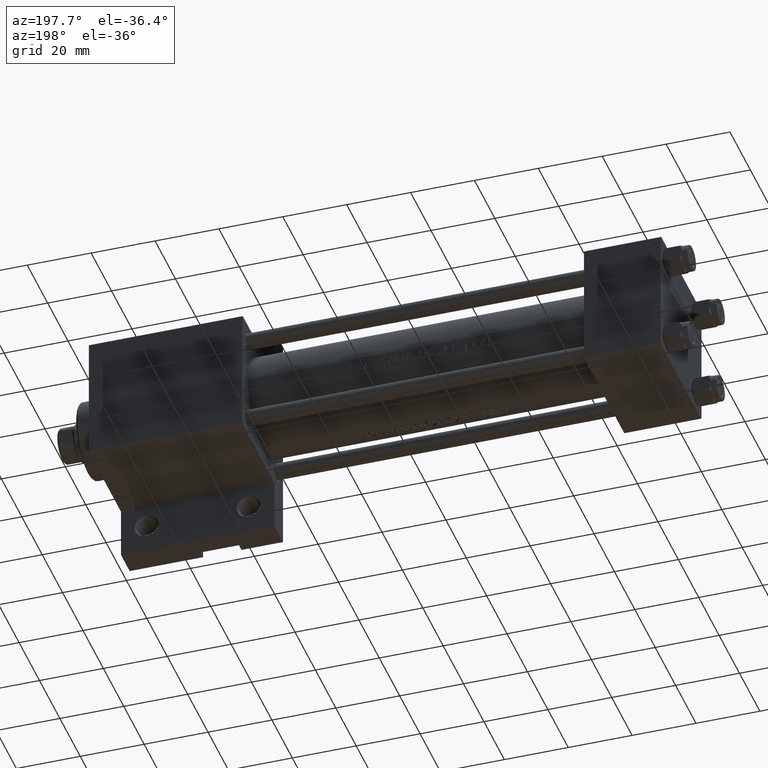
[diagram: clean part render]
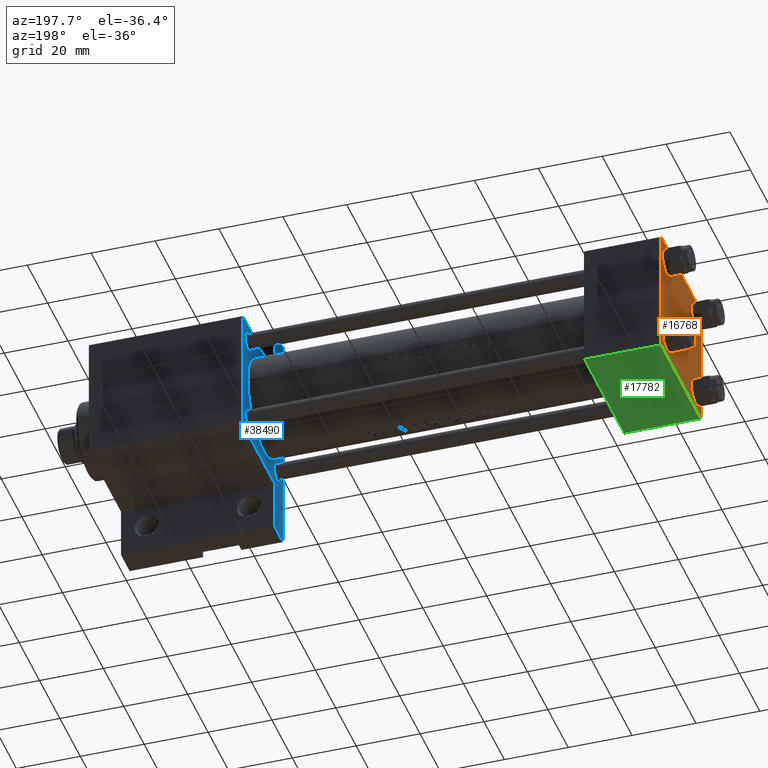
[diagram: same view with three faces highlighted in distinct colors, each labeled with its STEP entity id]
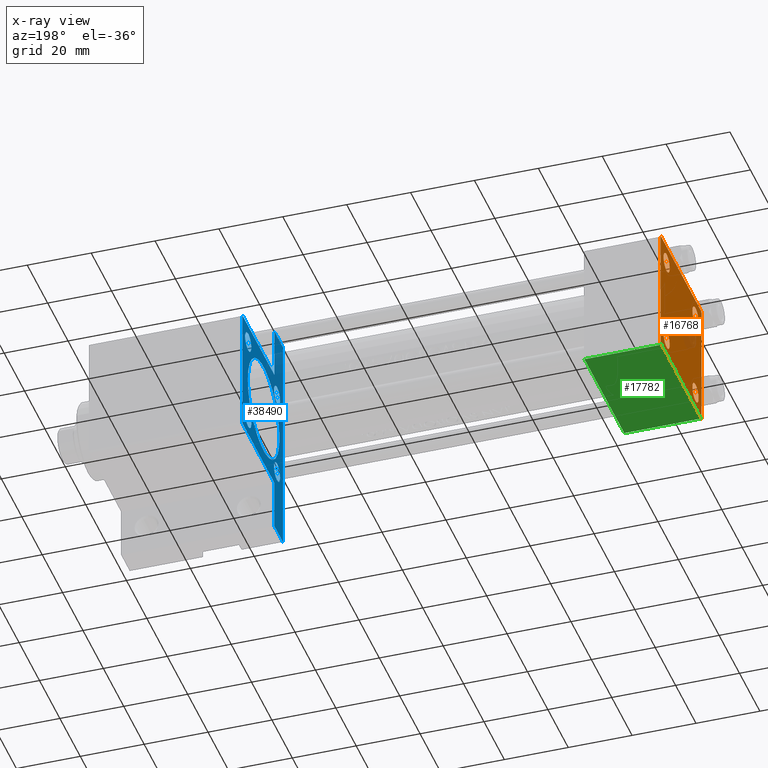
[diagram: x-ray of the same camera — body ghosted, the three highlighted faces saturated]
A machine part, auxiliary view with three faces highlighted in distinct colors.
The next image is the same camera in x-ray (body ghosted, the three faces saturated) — at least one of them is partly hidden behind the body in this view.
Their STEP definitions:

[orange] entity #16768 — the highlighted planar face has unit normal (-1, 0, -0).
#49 = EDGE_CURVE ( 'NONE', #32340, #11450, #11177, .T. ) ;
#93 = ORIENTED_EDGE ( 'NONE', *, *, #241, .T. ) ;
#241 = EDGE_CURVE ( 'NONE', #10335, #38544, #4764, .T. ) ;
#590 = AXIS2_PLACEMENT_3D ( 'NONE', #14220, #44141, #18284 ) ;
#749 = AXIS2_PLACEMENT_3D ( 'NONE', #43699, #24666, #47070 ) ;
#1051 = DIRECTION ( 'NONE',  ( -0.000000000000000000, 0.000000000000000000, 1.000000000000000000 ) ) ;
#1129 = EDGE_CURVE ( 'NONE', #32888, #36355, #41112, .T. ) ;
#1494 = LINE ( 'NONE', #13053, #44858 ) ;
#2131 = CARTESIAN_POINT ( 'NONE',  ( 0.000000000000000000, 14.14999999999999858, -17.14999999999998437 ) ) ;
#2174 = CARTESIAN_POINT ( 'NONE',  ( 0.000000000000000000, 14.14999999999999858, -11.15000000000001812 ) ) ;
#2926 = DIRECTION ( 'NONE',  ( 0.000000000000000000, 0.000000000000000000, 1.000000000000000000 ) ) ;
#3189 = CARTESIAN_POINT ( 'NONE',  ( 0.000000000000000000, -19.75000000000020961, -19.74999999999979394 ) ) ;
#3512 = DIRECTION ( 'NONE',  ( 1.000000000000000000, 0.000000000000000000, 0.000000000000000000 ) ) ;
#3999 = CARTESIAN_POINT ( 'NONE',  ( 0.000000000000000000, -20.00000000000000000, -19.49999999999999645 ) ) ;
#4764 = CIRCLE ( 'NONE', #10928, 2.999999999999983569 ) ;
#4782 = CARTESIAN_POINT ( 'NONE',  ( 0.000000000000000000, 14.14999999999999858, -14.15000000000000036 ) ) ;
#4904 = CARTESIAN_POINT ( 'NONE',  ( 0.000000000000000000, 0.000000000000000000, 0.000000000000000000 ) ) ;
#4999 = EDGE_CURVE ( 'NONE', #36355, #10648, #36206, .T. ) ;
#5438 = CARTESIAN_POINT ( 'NONE',  ( 0.000000000000000000, -19.50000000000000711, -20.00000000000000000 ) ) ;
#5519 = DIRECTION ( 'NONE',  ( 1.000000000000000000, 0.000000000000000000, 0.000000000000000000 ) ) ;
#5760 = DIRECTION ( 'NONE',  ( 0.000000000000000000, 0.000000000000000000, 1.000000000000000000 ) ) ;
#6358 = VECTOR ( 'NONE', #18628, 1000.000000000000000 ) ;
#7367 = CARTESIAN_POINT ( 'NONE',  ( 0.000000000000000000, -14.14999999999999503, 14.15000000000000391 ) ) ;
#8210 = ORIENTED_EDGE ( 'NONE', *, *, #43110, .F. ) ;
#8341 = DIRECTION ( 'NONE',  ( 0.000000000000000000, -1.000000000000000000, 1.734723475976807094E-16 ) ) ;
#8457 = CARTESIAN_POINT ( 'NONE',  ( -0.000000000000000000, 19.74999999999986855, -19.75000000000014211 ) ) ;
#8519 = FACE_BOUND ( 'NONE', #32047, .T. ) ;
#8645 = ORIENTED_EDGE ( 'NONE', *, *, #21315, .T. ) ;
#8872 = ORIENTED_EDGE ( 'NONE', *, *, #35487, .T. ) ;
#9007 = CARTESIAN_POINT ( 'NONE',  ( 0.000000000000000000, 20.00000000000000000, 20.00000000000000000 ) ) ;
#9143 = EDGE_CURVE ( 'NONE', #36146, #44484, #28458, .T. ) ;
#9580 = CARTESIAN_POINT ( 'NONE',  ( 0.000000000000000000, 14.14999999999999858, -14.15000000000000036 ) ) ;
#10335 = VERTEX_POINT ( 'NONE', #25783 ) ;
#10520 = DIRECTION ( 'NONE',  ( 0.000000000000000000, 0.000000000000000000, 1.000000000000000000 ) ) ;
#10613 = CIRCLE ( 'NONE', #19931, 2.999999999999983569 ) ;
#10648 = VERTEX_POINT ( 'NONE', #3999 ) ;
#10715 = ORIENTED_EDGE ( 'NONE', *, *, #35152, .T. ) ;
#10875 = CARTESIAN_POINT ( 'NONE',  ( 0.000000000000000000, -14.14999999999999503, -14.15000000000000391 ) ) ;
#10928 = AXIS2_PLACEMENT_3D ( 'NONE', #16209, #46092, #45855 ) ;
#11177 = LINE ( 'NONE', #36955, #6358 ) ;
#11450 = VERTEX_POINT ( 'NONE', #42267 ) ;
#11802 = VERTEX_POINT ( 'NONE', #38235 ) ;
#11890 = VERTEX_POINT ( 'NONE', #13402 ) ;
#12375 = FACE_BOUND ( 'NONE', #38825, .T. ) ;
#12923 = CIRCLE ( 'NONE', #590, 2.999999999999983569 ) ;
#13053 = CARTESIAN_POINT ( 'NONE',  ( -0.000000000000000000, 19.75000000000013500, 19.74999999999986144 ) ) ;
#13402 = CARTESIAN_POINT ( 'NONE',  ( 0.000000000000000000, -14.14999999999999503, -11.15000000000000036 ) ) ;
#13423 = EDGE_CURVE ( 'NONE', #11450, #32888, #33507, .T. ) ;
#13594 = DIRECTION ( 'NONE',  ( 0.000000000000000000, 0.000000000000000000, 1.000000000000000000 ) ) ;
#13780 = DIRECTION ( 'NONE',  ( 1.000000000000000000, 0.000000000000000000, 0.000000000000000000 ) ) ;
#14071 = CARTESIAN_POINT ( 'NONE',  ( 0.000000000000000000, 14.14999999999999858, 14.15000000000000036 ) ) ;
#14220 = CARTESIAN_POINT ( 'NONE',  ( 0.000000000000000000, 14.14999999999999858, 14.15000000000000036 ) ) ;
#15394 = CARTESIAN_POINT ( 'NONE',  ( 0.000000000000000000, -19.49999999999999289, 19.99999999999998934 ) ) ;
#15669 = DIRECTION ( 'NONE',  ( -0.000000000000000000, -0.7071067811865524577, -0.7071067811865426878 ) ) ;
#15927 = DIRECTION ( 'NONE',  ( 0.000000000000000000, 0.7071067811865425767, -0.7071067811865525687 ) ) ;
#16209 = CARTESIAN_POINT ( 'NONE',  ( 0.000000000000000000, -14.14999999999999503, 14.15000000000000391 ) ) ;
#16768 = ADVANCED_FACE ( 'NONE', ( #12375, #23193, #37910, #8519, #22715 ), #37667, .T. ) ;
#16884 = EDGE_CURVE ( 'NONE', #11802, #44484, #46562, .T. ) ;
#17394 = ORIENTED_EDGE ( 'NONE', *, *, #16884, .F. ) ;
#17472 = VECTOR ( 'NONE', #38396, 1000.000000000000000 ) ;
#17781 = CARTESIAN_POINT ( 'NONE',  ( 0.000000000000000000, -20.00000000000000355, 19.49999999999998224 ) ) ;
#17959 = CARTESIAN_POINT ( 'NONE',  ( 0.000000000000000000, 19.50000000000000711, -20.00000000000000711 ) ) ;
#18284 = DIRECTION ( 'NONE',  ( 0.000000000000000000, 0.000000000000000000, 1.000000000000000000 ) ) ;
#18291 = LINE ( 'NONE', #33942, #30939 ) ;
#18309 = EDGE_CURVE ( 'NONE', #43276, #45166, #12923, .T. ) ;
#18628 = DIRECTION ( 'NONE',  ( 0.000000000000000000, 0.000000000000000000, -1.000000000000000000 ) ) ;
#19931 = AXIS2_PLACEMENT_3D ( 'NONE', #4782, #5519, #5760 ) ;
#20318 = VECTOR ( 'NONE', #36181, 1000.000000000000114 ) ;
#20699 = CIRCLE ( 'NONE', #47613, 2.999999999999983569 ) ;
#20737 = AXIS2_PLACEMENT_3D ( 'NONE', #9580, #35822, #38960 ) ;
#20959 = VECTOR ( 'NONE', #8341, 1000.000000000000000 ) ;
#21048 = DIRECTION ( 'NONE',  ( 1.000000000000000000, 0.000000000000000000, 0.000000000000000000 ) ) ;
#21215 = VERTEX_POINT ( 'NONE', #39756 ) ;
#21315 = EDGE_CURVE ( 'NONE', #28650, #21516, #10613, .T. ) ;
#21516 = VERTEX_POINT ( 'NONE', #2131 ) ;
#22441 = ORIENTED_EDGE ( 'NONE', *, *, #1129, .T. ) ;
#22715 = FACE_OUTER_BOUND ( 'NONE', #25140, .T. ) ;
#23193 = FACE_BOUND ( 'NONE', #36985, .T. ) ;
#24292 = VECTOR ( 'NONE', #15669, 1000.000000000000000 ) ;
#24470 = ORIENTED_EDGE ( 'NONE', *, *, #49, .T. ) ;
#24666 = DIRECTION ( 'NONE',  ( 1.000000000000000000, 0.000000000000000000, 0.000000000000000000 ) ) ;
#25140 = EDGE_LOOP ( 'NONE', ( #24470, #26657, #22441, #26734, #8210, #34393, #17394, #28976 ) ) ;
#25783 = CARTESIAN_POINT ( 'NONE',  ( 0.000000000000000000, -14.14999999999999503, 17.14999999999998792 ) ) ;
#26657 = ORIENTED_EDGE ( 'NONE', *, *, #13423, .T. ) ;
#26734 = ORIENTED_EDGE ( 'NONE', *, *, #4999, .T. ) ;
#28458 = LINE ( 'NONE', #43874, #20318 ) ;
#28650 = VERTEX_POINT ( 'NONE', #2174 ) ;
#28740 = CIRCLE ( 'NONE', #37202, 2.999999999999983569 ) ;
#28976 = ORIENTED_EDGE ( 'NONE', *, *, #44217, .T. ) ;
#29707 = DIRECTION ( 'NONE',  ( -1.000000000000000000, 0.000000000000000000, -0.000000000000000000 ) ) ;
#30939 = VECTOR ( 'NONE', #44079, 1000.000000000000000 ) ;
#32047 = EDGE_LOOP ( 'NONE', ( #43658, #32065 ) ) ;
#32065 = ORIENTED_EDGE ( 'NONE', *, *, #18309, .T. ) ;
#32340 = VERTEX_POINT ( 'NONE', #44621 ) ;
#32738 = EDGE_CURVE ( 'NONE', #21516, #28650, #41513, .T. ) ;
#32888 = VERTEX_POINT ( 'NONE', #17959 ) ;
#33071 = CIRCLE ( 'NONE', #33862, 3.000000000000004441 ) ;
#33507 = LINE ( 'NONE', #8457, #24292 ) ;
#33862 = AXIS2_PLACEMENT_3D ( 'NONE', #10875, #13780, #2926 ) ;
#33942 = CARTESIAN_POINT ( 'NONE',  ( 0.000000000000000000, -20.00000000000000355, 19.99999999999998934 ) ) ;
#34393 = ORIENTED_EDGE ( 'NONE', *, *, #9143, .T. ) ;
#35152 = EDGE_CURVE ( 'NONE', #38544, #10335, #20699, .T. ) ;
#35487 = EDGE_CURVE ( 'NONE', #21215, #11890, #38463, .T. ) ;
#35822 = DIRECTION ( 'NONE',  ( 1.000000000000000000, 0.000000000000000000, 0.000000000000000000 ) ) ;
#36146 = VERTEX_POINT ( 'NONE', #17781 ) ;
#36181 = DIRECTION ( 'NONE',  ( -0.000000000000000000, 0.7071067811865500152, 0.7071067811865451302 ) ) ;
#36206 = LINE ( 'NONE', #3189, #43396 ) ;
#36355 = VERTEX_POINT ( 'NONE', #5438 ) ;
#36802 = EDGE_CURVE ( 'NONE', #11890, #21215, #33071, .T. ) ;
#36955 = CARTESIAN_POINT ( 'NONE',  ( 0.000000000000000000, 20.00000000000000000, 20.00000000000000000 ) ) ;
#36985 = EDGE_LOOP ( 'NONE', ( #45611, #8872 ) ) ;
#37202 = AXIS2_PLACEMENT_3D ( 'NONE', #14071, #21048, #13594 ) ;
#37667 = PLANE ( 'NONE',  #47498 ) ;
#37910 = FACE_BOUND ( 'NONE', #45068, .T. ) ;
#38235 = CARTESIAN_POINT ( 'NONE',  ( 0.000000000000000000, 19.50000000000000000, 20.00000000000000000 ) ) ;
#38336 = DIRECTION ( 'NONE',  ( 0.000000000000000000, -0.7071067811865401342, 0.7071067811865549002 ) ) ;
#38396 = DIRECTION ( 'NONE',  ( 0.000000000000000000, -1.000000000000000000, -2.602085213965210149E-16 ) ) ;
#38463 = CIRCLE ( 'NONE', #749, 3.000000000000004441 ) ;
#38544 = VERTEX_POINT ( 'NONE', #46857 ) ;
#38825 = EDGE_LOOP ( 'NONE', ( #93, #10715 ) ) ;
#38960 = DIRECTION ( 'NONE',  ( 0.000000000000000000, 0.000000000000000000, 1.000000000000000000 ) ) ;
#39756 = CARTESIAN_POINT ( 'NONE',  ( 0.000000000000000000, -14.14999999999999503, -17.15000000000000924 ) ) ;
#41112 = LINE ( 'NONE', #44957, #20959 ) ;
#41513 = CIRCLE ( 'NONE', #20737, 2.999999999999983569 ) ;
#42267 = CARTESIAN_POINT ( 'NONE',  ( 0.000000000000000000, 20.00000000000000000, -19.50000000000002132 ) ) ;
#43110 = EDGE_CURVE ( 'NONE', #36146, #10648, #18291, .T. ) ;
#43276 = VERTEX_POINT ( 'NONE', #45986 ) ;
#43396 = VECTOR ( 'NONE', #38336, 1000.000000000000000 ) ;
#43658 = ORIENTED_EDGE ( 'NONE', *, *, #46089, .T. ) ;
#43699 = CARTESIAN_POINT ( 'NONE',  ( 0.000000000000000000, -14.14999999999999503, -14.15000000000000391 ) ) ;
#43874 = CARTESIAN_POINT ( 'NONE',  ( -0.000000000000000000, -19.74999999999992539, 19.75000000000006395 ) ) ;
#44079 = DIRECTION ( 'NONE',  ( 0.000000000000000000, 8.673617379884036705E-17, -1.000000000000000000 ) ) ;
#44141 = DIRECTION ( 'NONE',  ( 1.000000000000000000, 0.000000000000000000, 0.000000000000000000 ) ) ;
#44170 = ORIENTED_EDGE ( 'NONE', *, *, #32738, .T. ) ;
#44217 = EDGE_CURVE ( 'NONE', #11802, #32340, #1494, .T. ) ;
#44484 = VERTEX_POINT ( 'NONE', #15394 ) ;
#44621 = CARTESIAN_POINT ( 'NONE',  ( 0.000000000000000000, 20.00000000000000000, 19.49999999999999289 ) ) ;
#44858 = VECTOR ( 'NONE', #15927, 999.9999999999998863 ) ;
#44957 = CARTESIAN_POINT ( 'NONE',  ( 0.000000000000000000, 20.00000000000000000, -20.00000000000000711 ) ) ;
#45068 = EDGE_LOOP ( 'NONE', ( #8645, #44170 ) ) ;
#45166 = VERTEX_POINT ( 'NONE', #45883 ) ;
#45611 = ORIENTED_EDGE ( 'NONE', *, *, #36802, .T. ) ;
#45855 = DIRECTION ( 'NONE',  ( 0.000000000000000000, 0.000000000000000000, 1.000000000000000000 ) ) ;
#45883 = CARTESIAN_POINT ( 'NONE',  ( 0.000000000000000000, 14.14999999999999858, 17.14999999999998437 ) ) ;
#45986 = CARTESIAN_POINT ( 'NONE',  ( 0.000000000000000000, 14.14999999999999858, 11.15000000000001990 ) ) ;
#46089 = EDGE_CURVE ( 'NONE', #45166, #43276, #28740, .T. ) ;
#46092 = DIRECTION ( 'NONE',  ( 1.000000000000000000, 0.000000000000000000, 0.000000000000000000 ) ) ;
#46562 = LINE ( 'NONE', #9007, #17472 ) ;
#46857 = CARTESIAN_POINT ( 'NONE',  ( 0.000000000000000000, -14.14999999999999503, 11.15000000000002345 ) ) ;
#47070 = DIRECTION ( 'NONE',  ( 0.000000000000000000, 0.000000000000000000, 1.000000000000000000 ) ) ;
#47498 = AXIS2_PLACEMENT_3D ( 'NONE', #4904, #29707, #1051 ) ;
#47613 = AXIS2_PLACEMENT_3D ( 'NONE', #7367, #3512, #10520 ) ;

[blue] entity #38490 — the highlighted planar face has unit normal (-1, 0, -0).
#56 = LINE ( 'NONE', #47046, #44071 ) ;
#126 = EDGE_CURVE ( 'NONE', #39017, #41390, #9396, .T. ) ;
#293 = AXIS2_PLACEMENT_3D ( 'NONE', #40169, #7800, #37195 ) ;
#1105 = VERTEX_POINT ( 'NONE', #11243 ) ;
#1396 = EDGE_CURVE ( 'NONE', #41390, #39017, #9432, .T. ) ;
#1594 = CARTESIAN_POINT ( 'NONE',  ( 131.0000000000000000, -14.15000000000000036, -14.15000000000000036 ) ) ;
#2032 = ORIENTED_EDGE ( 'NONE', *, *, #4690, .T. ) ;
#2046 = DIRECTION ( 'NONE',  ( 0.000000000000000000, 8.673617379884036705E-17, -1.000000000000000000 ) ) ;
#2343 = LINE ( 'NONE', #17016, #47548 ) ;
#2712 = EDGE_CURVE ( 'NONE', #36169, #33698, #56, .T. ) ;
#3013 = FACE_BOUND ( 'NONE', #10231, .T. ) ;
#3299 = ORIENTED_EDGE ( 'NONE', *, *, #45661, .T. ) ;
#3481 = DIRECTION ( 'NONE',  ( -0.000000000000000000, 0.000000000000000000, 1.000000000000000000 ) ) ;
#4561 = CARTESIAN_POINT ( 'NONE',  ( 131.0000000000000000, 0.000000000000000000, -1.000000000000007772 ) ) ;
#4690 = EDGE_CURVE ( 'NONE', #29711, #16717, #26434, .T. ) ;
#5094 = EDGE_LOOP ( 'NONE', ( #33853, #30003, #24074, #5553, #47309, #3299, #24498, #14543, #17021, #42631 ) ) ;
#5205 = DIRECTION ( 'NONE',  ( 0.000000000000000000, 0.000000000000000000, 1.000000000000000000 ) ) ;
#5223 = CARTESIAN_POINT ( 'NONE',  ( 131.0000000000000000, -14.15000000000000036, 11.14999999999999503 ) ) ;
#5553 = ORIENTED_EDGE ( 'NONE', *, *, #9601, .T. ) ;
#5593 = DIRECTION ( 'NONE',  ( 1.000000000000000000, 0.000000000000000000, 0.000000000000000000 ) ) ;
#5690 = VERTEX_POINT ( 'NONE', #5223 ) ;
#6441 = DIRECTION ( 'NONE',  ( 0.000000000000000000, 0.000000000000000000, -1.000000000000000000 ) ) ;
#6450 = EDGE_CURVE ( 'NONE', #33698, #9757, #41446, .T. ) ;
#6833 = EDGE_CURVE ( 'NONE', #5690, #16075, #36513, .T. ) ;
#6874 = FACE_BOUND ( 'NONE', #19948, .T. ) ;
#7179 = LINE ( 'NONE', #7878, #25488 ) ;
#7248 = DIRECTION ( 'NONE',  ( 0.000000000000000000, 0.000000000000000000, -1.000000000000000000 ) ) ;
#7270 = DIRECTION ( 'NONE',  ( 0.000000000000000000, 0.000000000000000000, -1.000000000000000000 ) ) ;
#7516 = DIRECTION ( 'NONE',  ( 1.000000000000000000, 0.000000000000000000, 0.000000000000000000 ) ) ;
#7665 = EDGE_LOOP ( 'NONE', ( #42523, #42427 ) ) ;
#7800 = DIRECTION ( 'NONE',  ( 1.000000000000000000, 0.000000000000000000, 0.000000000000000000 ) ) ;
#7878 = CARTESIAN_POINT ( 'NONE',  ( 131.0000000000000000, -36.00000000000000000, -11.50000000000000000 ) ) ;
#8220 = LINE ( 'NONE', #37616, #12790 ) ;
#8827 = DIRECTION ( 'NONE',  ( 1.000000000000000000, 0.000000000000000000, 0.000000000000000000 ) ) ;
#8967 = CARTESIAN_POINT ( 'NONE',  ( 131.0000000000000000, 14.15000000000000036, -14.15000000000000036 ) ) ;
#9396 = CIRCLE ( 'NONE', #24770, 3.000000000000004441 ) ;
#9430 = VECTOR ( 'NONE', #44506, 1000.000000000000000 ) ;
#9432 = CIRCLE ( 'NONE', #10213, 3.000000000000004441 ) ;
#9508 = CARTESIAN_POINT ( 'NONE',  ( 131.0000000000000000, 19.99999999999999645, 19.50000000000002842 ) ) ;
#9601 = EDGE_CURVE ( 'NONE', #9757, #18551, #32435, .T. ) ;
#9724 = CARTESIAN_POINT ( 'NONE',  ( 131.0000000000000000, 0.000000000000000000, 14.49999999999999822 ) ) ;
#9757 = VERTEX_POINT ( 'NONE', #41097 ) ;
#10213 = AXIS2_PLACEMENT_3D ( 'NONE', #44837, #7516, #33280 ) ;
#10231 = EDGE_LOOP ( 'NONE', ( #20531, #2032 ) ) ;
#10352 = EDGE_LOOP ( 'NONE', ( #30760, #41828 ) ) ;
#10478 = DIRECTION ( 'NONE',  ( 0.000000000000000000, 0.000000000000000000, 1.000000000000000000 ) ) ;
#10714 = AXIS2_PLACEMENT_3D ( 'NONE', #21947, #22407, #7270 ) ;
#11243 = CARTESIAN_POINT ( 'NONE',  ( 131.0000000000000000, 14.15000000000000036, -11.14999999999999680 ) ) ;
#11407 = VECTOR ( 'NONE', #7248, 1000.000000000000000 ) ;
#11410 = CIRCLE ( 'NONE', #10714, 15.50000000000000711 ) ;
#11944 = EDGE_CURVE ( 'NONE', #32631, #1105, #28069, .T. ) ;
#12058 = CARTESIAN_POINT ( 'NONE',  ( 131.0000000000000000, 19.99999999999999645, 20.00000000000000000 ) ) ;
#12790 = VECTOR ( 'NONE', #33517, 1000.000000000000000 ) ;
#12827 = LINE ( 'NONE', #14006, #11407 ) ;
#12984 = CARTESIAN_POINT ( 'NONE',  ( 131.0000000000000000, 35.99999999999998579, -11.50000000000000000 ) ) ;
#13054 = CIRCLE ( 'NONE', #39983, 15.50000000000000711 ) ;
#13472 = AXIS2_PLACEMENT_3D ( 'NONE', #24698, #31227, #45932 ) ;
#14006 = CARTESIAN_POINT ( 'NONE',  ( 131.0000000000000000, 35.99999999999998579, -11.50000000000000000 ) ) ;
#14098 = PLANE ( 'NONE',  #16187 ) ;
#14338 = EDGE_CURVE ( 'NONE', #36169, #19349, #8220, .T. ) ;
#14543 = ORIENTED_EDGE ( 'NONE', *, *, #16113, .T. ) ;
#15424 = DIRECTION ( 'NONE',  ( 0.000000000000000000, 1.000000000000000000, 0.000000000000000000 ) ) ;
#16075 = VERTEX_POINT ( 'NONE', #24853 ) ;
#16113 = EDGE_CURVE ( 'NONE', #38975, #19699, #37362, .T. ) ;
#16187 = AXIS2_PLACEMENT_3D ( 'NONE', #20840, #43722, #3481 ) ;
#16645 = DIRECTION ( 'NONE',  ( 0.000000000000000000, 0.000000000000000000, 1.000000000000000000 ) ) ;
#16697 = DIRECTION ( 'NONE',  ( 0.000000000000000000, 0.000000000000000000, 1.000000000000000000 ) ) ;
#16717 = VERTEX_POINT ( 'NONE', #39453 ) ;
#17016 = CARTESIAN_POINT ( 'NONE',  ( 131.0000000000000000, -19.74999999999947420, 19.75000000000056843 ) ) ;
#17021 = ORIENTED_EDGE ( 'NONE', *, *, #36406, .F. ) ;
#18413 = AXIS2_PLACEMENT_3D ( 'NONE', #8967, #5593, #16645 ) ;
#18523 = CARTESIAN_POINT ( 'NONE',  ( 131.0000000000000000, 35.99999999999998579, -20.00000000000000000 ) ) ;
#18537 = CARTESIAN_POINT ( 'NONE',  ( 131.0000000000000000, 14.15000000000000036, -17.15000000000000568 ) ) ;
#18551 = VERTEX_POINT ( 'NONE', #12984 ) ;
#19247 = DIRECTION ( 'NONE',  ( 1.000000000000000000, 0.000000000000000000, 0.000000000000000000 ) ) ;
#19280 = CARTESIAN_POINT ( 'NONE',  ( 131.0000000000000000, -36.00000000000000000, -11.50000000000000000 ) ) ;
#19349 = VERTEX_POINT ( 'NONE', #41633 ) ;
#19699 = VERTEX_POINT ( 'NONE', #19818 ) ;
#19818 = CARTESIAN_POINT ( 'NONE',  ( 131.0000000000000000, -20.00000000000000355, -11.50000000000000000 ) ) ;
#19948 = EDGE_LOOP ( 'NONE', ( #23008, #27828 ) ) ;
#19979 = CIRCLE ( 'NONE', #18413, 3.000000000000004441 ) ;
#20084 = CARTESIAN_POINT ( 'NONE',  ( 131.0000000000000000, -14.15000000000000036, 14.15000000000000036 ) ) ;
#20110 = LINE ( 'NONE', #35524, #43095 ) ;
#20217 = DIRECTION ( 'NONE',  ( 0.000000000000000000, 0.000000000000000000, -1.000000000000000000 ) ) ;
#20531 = ORIENTED_EDGE ( 'NONE', *, *, #24375, .T. ) ;
#20840 = CARTESIAN_POINT ( 'NONE',  ( 131.0000000000000000, 0.000000000000000000, 0.000000000000000000 ) ) ;
#21134 = AXIS2_PLACEMENT_3D ( 'NONE', #29238, #43474, #10478 ) ;
#21547 = FACE_OUTER_BOUND ( 'NONE', #5094, .T. ) ;
#21847 = VECTOR ( 'NONE', #6441, 1000.000000000000000 ) ;
#21947 = CARTESIAN_POINT ( 'NONE',  ( 131.0000000000000000, 0.000000000000000000, -1.000000000000007772 ) ) ;
#21971 = DIRECTION ( 'NONE',  ( 0.000000000000000000, 0.7071067811865474617, -0.7071067811865474617 ) ) ;
#22005 = VERTEX_POINT ( 'NONE', #9724 ) ;
#22407 = DIRECTION ( 'NONE',  ( 1.000000000000000000, 0.000000000000000000, 0.000000000000000000 ) ) ;
#23008 = ORIENTED_EDGE ( 'NONE', *, *, #29448, .T. ) ;
#24074 = ORIENTED_EDGE ( 'NONE', *, *, #6450, .T. ) ;
#24375 = EDGE_CURVE ( 'NONE', #16717, #29711, #43007, .T. ) ;
#24498 = ORIENTED_EDGE ( 'NONE', *, *, #40382, .F. ) ;
#24698 = CARTESIAN_POINT ( 'NONE',  ( 131.0000000000000000, 14.15000000000000036, -14.15000000000000036 ) ) ;
#24770 = AXIS2_PLACEMENT_3D ( 'NONE', #46328, #41767, #42249 ) ;
#24853 = CARTESIAN_POINT ( 'NONE',  ( 131.0000000000000000, -14.15000000000000036, 17.15000000000000568 ) ) ;
#25152 = VERTEX_POINT ( 'NONE', #37084 ) ;
#25467 = DIRECTION ( 'NONE',  ( 0.000000000000000000, 0.000000000000000000, -1.000000000000000000 ) ) ;
#25488 = VECTOR ( 'NONE', #25467, 1000.000000000000000 ) ;
#26032 = EDGE_CURVE ( 'NONE', #25152, #22005, #13054, .T. ) ;
#26434 = CIRCLE ( 'NONE', #293, 3.000000000000004441 ) ;
#27828 = ORIENTED_EDGE ( 'NONE', *, *, #26032, .T. ) ;
#28069 = CIRCLE ( 'NONE', #13472, 3.000000000000004441 ) ;
#28569 = CARTESIAN_POINT ( 'NONE',  ( 131.0000000000000000, -36.00000000000000000, -20.00000000000000000 ) ) ;
#29238 = CARTESIAN_POINT ( 'NONE',  ( 131.0000000000000000, -14.15000000000000036, 14.15000000000000036 ) ) ;
#29448 = EDGE_CURVE ( 'NONE', #22005, #25152, #11410, .T. ) ;
#29470 = VERTEX_POINT ( 'NONE', #44583 ) ;
#29569 = CARTESIAN_POINT ( 'NONE',  ( 131.0000000000000000, 19.99999999999999645, -20.00000000000000000 ) ) ;
#29711 = VERTEX_POINT ( 'NONE', #31789 ) ;
#30003 = ORIENTED_EDGE ( 'NONE', *, *, #2712, .T. ) ;
#30705 = ORIENTED_EDGE ( 'NONE', *, *, #126, .T. ) ;
#30760 = ORIENTED_EDGE ( 'NONE', *, *, #35541, .T. ) ;
#31227 = DIRECTION ( 'NONE',  ( 1.000000000000000000, 0.000000000000000000, 0.000000000000000000 ) ) ;
#31713 = DIRECTION ( 'NONE',  ( -0.000000000000000000, 0.7071067811865671127, 0.7071067811865279218 ) ) ;
#31789 = CARTESIAN_POINT ( 'NONE',  ( 131.0000000000000000, -14.15000000000000036, -17.15000000000000568 ) ) ;
#32012 = CARTESIAN_POINT ( 'NONE',  ( 131.0000000000000000, 19.50000000000002487, 20.00000000000000000 ) ) ;
#32158 = FACE_BOUND ( 'NONE', #45659, .T. ) ;
#32435 = LINE ( 'NONE', #43766, #44922 ) ;
#32492 = EDGE_CURVE ( 'NONE', #18551, #33306, #12827, .T. ) ;
#32631 = VERTEX_POINT ( 'NONE', #18537 ) ;
#32677 = DIRECTION ( 'NONE',  ( -0.000000000000000000, 1.000000000000000000, -0.000000000000000000 ) ) ;
#32804 = EDGE_CURVE ( 'NONE', #29470, #19349, #2343, .T. ) ;
#33105 = AXIS2_PLACEMENT_3D ( 'NONE', #20084, #45135, #16697 ) ;
#33280 = DIRECTION ( 'NONE',  ( 0.000000000000000000, 0.000000000000000000, 1.000000000000000000 ) ) ;
#33306 = VERTEX_POINT ( 'NONE', #18523 ) ;
#33392 = CARTESIAN_POINT ( 'NONE',  ( 131.0000000000000000, 14.15000000000000036, 11.14999999999999680 ) ) ;
#33517 = DIRECTION ( 'NONE',  ( 0.000000000000000000, -1.000000000000000000, -8.673617379884035472E-17 ) ) ;
#33698 = VERTEX_POINT ( 'NONE', #9508 ) ;
#33853 = ORIENTED_EDGE ( 'NONE', *, *, #14338, .F. ) ;
#35230 = VERTEX_POINT ( 'NONE', #28569 ) ;
#35524 = CARTESIAN_POINT ( 'NONE',  ( 131.0000000000000000, -20.00000000000000355, 19.99999999999999645 ) ) ;
#35541 = EDGE_CURVE ( 'NONE', #1105, #32631, #19979, .T. ) ;
#35794 = FACE_BOUND ( 'NONE', #10352, .T. ) ;
#36169 = VERTEX_POINT ( 'NONE', #32012 ) ;
#36406 = EDGE_CURVE ( 'NONE', #29470, #19699, #20110, .T. ) ;
#36513 = CIRCLE ( 'NONE', #21134, 3.000000000000004441 ) ;
#37084 = CARTESIAN_POINT ( 'NONE',  ( 131.0000000000000000, 1.898202538678398346E-15, -16.50000000000001421 ) ) ;
#37195 = DIRECTION ( 'NONE',  ( 0.000000000000000000, 0.000000000000000000, 1.000000000000000000 ) ) ;
#37362 = LINE ( 'NONE', #19280, #46688 ) ;
#37519 = LINE ( 'NONE', #29569, #9430 ) ;
#37616 = CARTESIAN_POINT ( 'NONE',  ( 131.0000000000000000, 19.99999999999999645, 20.00000000000000000 ) ) ;
#38408 = AXIS2_PLACEMENT_3D ( 'NONE', #1594, #8827, #5205 ) ;
#38490 = ADVANCED_FACE ( 'NONE', ( #46625, #32158, #35794, #3013, #6874, #21547 ), #14098, .T. ) ;
#38583 = CARTESIAN_POINT ( 'NONE',  ( 131.0000000000000000, -36.00000000000000000, -11.50000000000000000 ) ) ;
#38651 = EDGE_CURVE ( 'NONE', #16075, #5690, #43880, .T. ) ;
#38975 = VERTEX_POINT ( 'NONE', #38583 ) ;
#39017 = VERTEX_POINT ( 'NONE', #39528 ) ;
#39453 = CARTESIAN_POINT ( 'NONE',  ( 131.0000000000000000, -14.15000000000000036, -11.14999999999999680 ) ) ;
#39528 = CARTESIAN_POINT ( 'NONE',  ( 131.0000000000000000, 14.15000000000000036, 17.15000000000000568 ) ) ;
#39680 = ORIENTED_EDGE ( 'NONE', *, *, #1396, .T. ) ;
#39983 = AXIS2_PLACEMENT_3D ( 'NONE', #4561, #19247, #20217 ) ;
#40169 = CARTESIAN_POINT ( 'NONE',  ( 131.0000000000000000, -14.15000000000000036, -14.15000000000000036 ) ) ;
#40382 = EDGE_CURVE ( 'NONE', #38975, #35230, #7179, .T. ) ;
#41097 = CARTESIAN_POINT ( 'NONE',  ( 131.0000000000000000, 19.99999999999999645, -11.50000000000000000 ) ) ;
#41390 = VERTEX_POINT ( 'NONE', #33392 ) ;
#41446 = LINE ( 'NONE', #12058, #21847 ) ;
#41633 = CARTESIAN_POINT ( 'NONE',  ( 131.0000000000000000, -19.50000000000003197, 19.99999999999999645 ) ) ;
#41767 = DIRECTION ( 'NONE',  ( 1.000000000000000000, 0.000000000000000000, 0.000000000000000000 ) ) ;
#41828 = ORIENTED_EDGE ( 'NONE', *, *, #11944, .T. ) ;
#42249 = DIRECTION ( 'NONE',  ( 0.000000000000000000, 0.000000000000000000, 1.000000000000000000 ) ) ;
#42427 = ORIENTED_EDGE ( 'NONE', *, *, #6833, .T. ) ;
#42523 = ORIENTED_EDGE ( 'NONE', *, *, #38651, .T. ) ;
#42631 = ORIENTED_EDGE ( 'NONE', *, *, #32804, .T. ) ;
#43007 = CIRCLE ( 'NONE', #38408, 3.000000000000004441 ) ;
#43095 = VECTOR ( 'NONE', #2046, 1000.000000000000000 ) ;
#43474 = DIRECTION ( 'NONE',  ( 1.000000000000000000, 0.000000000000000000, 0.000000000000000000 ) ) ;
#43722 = DIRECTION ( 'NONE',  ( -1.000000000000000000, 0.000000000000000000, -0.000000000000000000 ) ) ;
#43766 = CARTESIAN_POINT ( 'NONE',  ( 131.0000000000000000, 35.99999999999998579, -11.50000000000000000 ) ) ;
#43880 = CIRCLE ( 'NONE', #33105, 3.000000000000004441 ) ;
#44071 = VECTOR ( 'NONE', #21971, 1000.000000000000114 ) ;
#44506 = DIRECTION ( 'NONE',  ( 0.000000000000000000, -1.000000000000000000, 0.000000000000000000 ) ) ;
#44583 = CARTESIAN_POINT ( 'NONE',  ( 131.0000000000000000, -20.00000000000000355, 19.50000000000005329 ) ) ;
#44837 = CARTESIAN_POINT ( 'NONE',  ( 131.0000000000000000, 14.15000000000000036, 14.15000000000000036 ) ) ;
#44922 = VECTOR ( 'NONE', #32677, 1000.000000000000000 ) ;
#45135 = DIRECTION ( 'NONE',  ( 1.000000000000000000, 0.000000000000000000, 0.000000000000000000 ) ) ;
#45659 = EDGE_LOOP ( 'NONE', ( #30705, #39680 ) ) ;
#45661 = EDGE_CURVE ( 'NONE', #33306, #35230, #37519, .T. ) ;
#45932 = DIRECTION ( 'NONE',  ( 0.000000000000000000, 0.000000000000000000, 1.000000000000000000 ) ) ;
#46328 = CARTESIAN_POINT ( 'NONE',  ( 131.0000000000000000, 14.15000000000000036, 14.15000000000000036 ) ) ;
#46625 = FACE_BOUND ( 'NONE', #7665, .T. ) ;
#46688 = VECTOR ( 'NONE', #15424, 1000.000000000000000 ) ;
#47046 = CARTESIAN_POINT ( 'NONE',  ( 131.0000000000000000, 19.75000000000001066, 19.75000000000001066 ) ) ;
#47309 = ORIENTED_EDGE ( 'NONE', *, *, #32492, .T. ) ;
#47548 = VECTOR ( 'NONE', #31713, 1000.000000000000000 ) ;

[green] entity #17782 — the highlighted planar face has unit normal (0, 0, -1).
#49 = EDGE_CURVE ( 'NONE', #32340, #11450, #11177, .T. ) ;
#1607 = FACE_OUTER_BOUND ( 'NONE', #1621, .T. ) ;
#1621 = EDGE_LOOP ( 'NONE', ( #41695, #43809, #44652, #18120 ) ) ;
#6358 = VECTOR ( 'NONE', #18628, 1000.000000000000000 ) ;
#7115 = CARTESIAN_POINT ( 'NONE',  ( 24.00000000000000000, 20.00000000000000000, 19.49999999999999289 ) ) ;
#8359 = LINE ( 'NONE', #37277, #31305 ) ;
#8792 = CARTESIAN_POINT ( 'NONE',  ( 24.00000000000000000, 20.00000000000000000, -19.50000000000002132 ) ) ;
#11177 = LINE ( 'NONE', #36955, #6358 ) ;
#11450 = VERTEX_POINT ( 'NONE', #42267 ) ;
#11647 = VECTOR ( 'NONE', #23461, 1000.000000000000000 ) ;
#12132 = CARTESIAN_POINT ( 'NONE',  ( 24.00000000000000000, 20.00000000000000000, 19.49999999999999289 ) ) ;
#12400 = LINE ( 'NONE', #8792, #11647 ) ;
#14420 = VECTOR ( 'NONE', #26796, 1000.000000000000000 ) ;
#15578 = EDGE_CURVE ( 'NONE', #44097, #20936, #8359, .T. ) ;
#16787 = EDGE_CURVE ( 'NONE', #32340, #44097, #19587, .T. ) ;
#17782 = ADVANCED_FACE ( 'NONE', ( #1607 ), #34361, .T. ) ;
#18120 = ORIENTED_EDGE ( 'NONE', *, *, #16787, .T. ) ;
#18628 = DIRECTION ( 'NONE',  ( 0.000000000000000000, 0.000000000000000000, -1.000000000000000000 ) ) ;
#18630 = CARTESIAN_POINT ( 'NONE',  ( 24.00000000000000000, 20.00000000000000000, -19.50000000000002132 ) ) ;
#19587 = LINE ( 'NONE', #12132, #14420 ) ;
#19657 = DIRECTION ( 'NONE',  ( 0.000000000000000000, -0.000000000000000000, 1.000000000000000000 ) ) ;
#20936 = VERTEX_POINT ( 'NONE', #18630 ) ;
#23461 = DIRECTION ( 'NONE',  ( -1.000000000000000000, 0.000000000000000000, 0.000000000000000000 ) ) ;
#26796 = DIRECTION ( 'NONE',  ( 1.000000000000000000, 0.000000000000000000, 0.000000000000000000 ) ) ;
#31305 = VECTOR ( 'NONE', #37034, 1000.000000000000000 ) ;
#32340 = VERTEX_POINT ( 'NONE', #44621 ) ;
#34361 = PLANE ( 'NONE',  #45969 ) ;
#36955 = CARTESIAN_POINT ( 'NONE',  ( 0.000000000000000000, 20.00000000000000000, 20.00000000000000000 ) ) ;
#37034 = DIRECTION ( 'NONE',  ( 0.000000000000000000, 0.000000000000000000, -1.000000000000000000 ) ) ;
#37277 = CARTESIAN_POINT ( 'NONE',  ( 24.00000000000000000, 20.00000000000000000, 20.00000000000000000 ) ) ;
#38701 = DIRECTION ( 'NONE',  ( -0.000000000000000000, 1.000000000000000000, 0.000000000000000000 ) ) ;
#40819 = EDGE_CURVE ( 'NONE', #20936, #11450, #12400, .T. ) ;
#41695 = ORIENTED_EDGE ( 'NONE', *, *, #15578, .T. ) ;
#42267 = CARTESIAN_POINT ( 'NONE',  ( 0.000000000000000000, 20.00000000000000000, -19.50000000000002132 ) ) ;
#43809 = ORIENTED_EDGE ( 'NONE', *, *, #40819, .T. ) ;
#44097 = VERTEX_POINT ( 'NONE', #7115 ) ;
#44621 = CARTESIAN_POINT ( 'NONE',  ( 0.000000000000000000, 20.00000000000000000, 19.49999999999999289 ) ) ;
#44652 = ORIENTED_EDGE ( 'NONE', *, *, #49, .F. ) ;
#45439 = CARTESIAN_POINT ( 'NONE',  ( 24.00000000000000000, 20.00000000000000000, 20.00000000000000000 ) ) ;
#45969 = AXIS2_PLACEMENT_3D ( 'NONE', #45439, #38701, #19657 ) ;